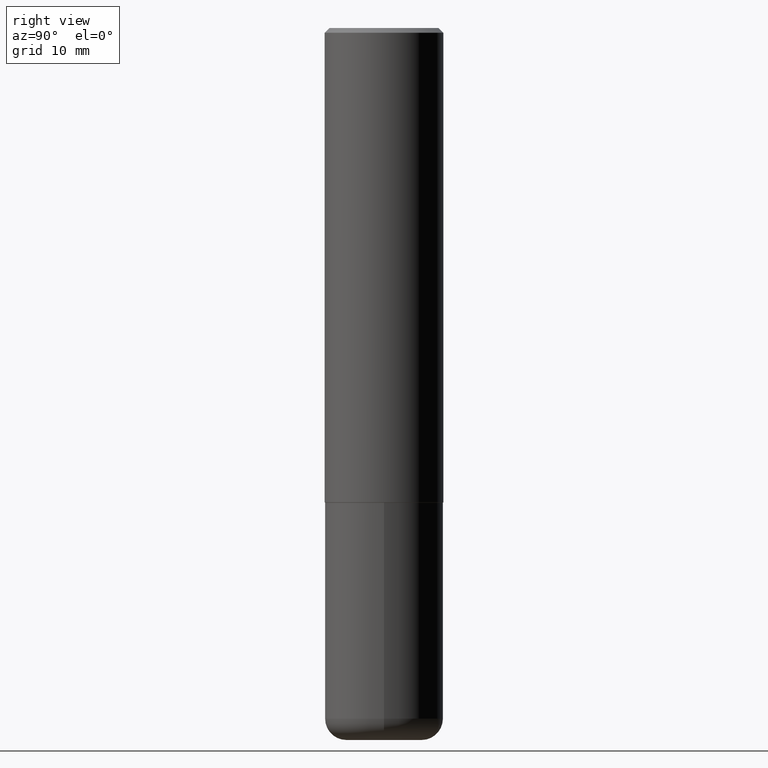
[diagram: clean part render]
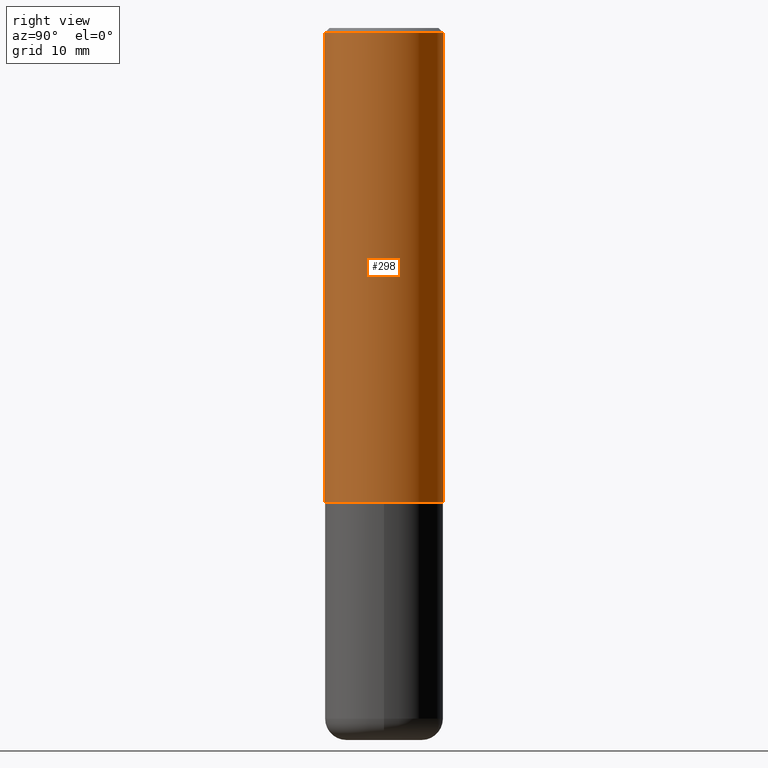
[diagram: same view with one face highlighted and labeled with its STEP entity id]
A machine part, right view. The second image highlights one B-rep face of the part: STEP entity #298.
In plain terms, the highlighted cylindrical surface (partial cylindrical patch) has radius 6.35 mm, axis along (-0, 0, 1).
Its self-contained STEP definition (entity closure, byte-faithful):
#21 = CARTESIAN_POINT ( 'NONE',  ( 1.776356839400276103E-15, 0.2499999999999932276, -1.999000000000000998 ) ) ;
#31 = DIRECTION ( 'NONE',  ( -6.982962677686265133E-15, -1.000000000000000000, 3.278217592397113101E-15 ) ) ;
#50 = VECTOR ( 'NONE', #407, 39.37007874015748143 ) ;
#63 = CARTESIAN_POINT ( 'NONE',  ( -1.745740669421566875E-15, -0.2500000000000000555, 8.726125602445941395E-16 ) ) ;
#78 = EDGE_CURVE ( 'NONE', #293, #295, #305, .T. ) ;
#79 = LINE ( 'NONE', #127, #50 ) ;
#87 = CARTESIAN_POINT ( 'NONE',  ( -1.745740669421518952E-15, -0.2500000000000071609, -1.998999999999999444 ) ) ;
#91 = ORIENTED_EDGE ( 'NONE', *, *, #282, .T. ) ;
#93 = CIRCLE ( 'NONE', #172, 0.2500000000000002220 ) ;
#94 = DIRECTION ( 'NONE',  ( -2.446188817975809368E-29, 3.490450240978375769E-15, 1.000000000000000000 ) ) ;
#97 = VERTEX_POINT ( 'NONE', #21 ) ;
#105 = CIRCLE ( 'NONE', #250, 0.2499999999999999722 ) ;
#127 = CARTESIAN_POINT ( 'NONE',  ( 1.776356839400250859E-15, 0.2500000000000000555, -8.726125602445941395E-16 ) ) ;
#134 = VERTEX_POINT ( 'NONE', #156 ) ;
#152 = DIRECTION ( 'NONE',  ( -6.982962677686265922E-15, -1.000000000000000000, 3.490450240978375769E-15 ) ) ;
#156 = CARTESIAN_POINT ( 'NONE',  ( 1.745740669421566678E-15, 0.2499999999999998890, -0.02000000000000096492 ) ) ;
#172 = AXIS2_PLACEMENT_3D ( 'NONE', #348, #281, #31 ) ;
#178 = AXIS2_PLACEMENT_3D ( 'NONE', #290, #94, #152 ) ;
#195 = CARTESIAN_POINT ( 'NONE',  ( -1.715124499442881905E-15, -0.2500000000000000555, -0.01999999999999922326 ) ) ;
#202 = EDGE_CURVE ( 'NONE', #97, #134, #79, .T. ) ;
#225 = CYLINDRICAL_SURFACE ( 'NONE', #178, 0.2500000000000000555 ) ;
#227 = ORIENTED_EDGE ( 'NONE', *, *, #78, .F. ) ;
#233 = EDGE_LOOP ( 'NONE', ( #91, #389, #392, #227 ) ) ;
#250 = AXIS2_PLACEMENT_3D ( 'NONE', #350, #256, #387 ) ;
#256 = DIRECTION ( 'NONE',  ( -2.446188817975809368E-29, 3.490450240978375769E-15, 1.000000000000000000 ) ) ;
#262 = VECTOR ( 'NONE', #402, 39.37007874015748143 ) ;
#281 = DIRECTION ( 'NONE',  ( -2.446188817975809368E-29, 3.490450240978375769E-15, 1.000000000000000000 ) ) ;
#282 = EDGE_CURVE ( 'NONE', #293, #97, #93, .T. ) ;
#290 = CARTESIAN_POINT ( 'NONE',  ( 0.000000000000000000, 0.000000000000000000, 0.000000000000000000 ) ) ;
#293 = VERTEX_POINT ( 'NONE', #87 ) ;
#295 = VERTEX_POINT ( 'NONE', #195 ) ;
#298 = ADVANCED_FACE ( 'NONE', ( #405 ), #225, .T. ) ;
#305 = LINE ( 'NONE', #63, #262 ) ;
#331 = EDGE_CURVE ( 'NONE', #295, #134, #105, .T. ) ;
#348 = CARTESIAN_POINT ( 'NONE',  ( 4.889931447133643413E-29, -6.977410031715773956E-15, -1.999000000000000110 ) ) ;
#350 = CARTESIAN_POINT ( 'NONE',  ( 4.892377635951642279E-31, -6.980900481956783980E-17, -0.02000000000000009409 ) ) ;
#387 = DIRECTION ( 'NONE',  ( -6.982962677686265922E-15, -1.000000000000000000, 3.483106191921935949E-15 ) ) ;
#389 = ORIENTED_EDGE ( 'NONE', *, *, #202, .T. ) ;
#392 = ORIENTED_EDGE ( 'NONE', *, *, #331, .F. ) ;
#402 = DIRECTION ( 'NONE',  ( -2.446188817975809368E-29, 3.490450240978375769E-15, 1.000000000000000000 ) ) ;
#405 = FACE_OUTER_BOUND ( 'NONE', #233, .T. ) ;
#407 = DIRECTION ( 'NONE',  ( -2.446188817975809368E-29, 3.490450240978375769E-15, 1.000000000000000000 ) ) ;